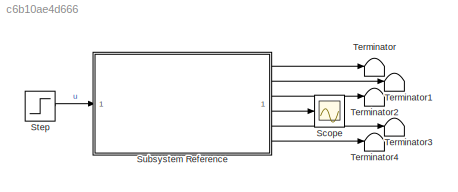
MODEL slx_c6b10ae4d666
KIND model
CONFIG AbsTol = auto
CONFIG EnableMultiTasking = off
CONFIG FixedStep = auto
CONFIG MaxStep = auto
CONFIG MinStep = auto
CONFIG RelTol = 1e-3
CONFIG SampleTimeConstraint = Unconstrained
CONFIG SolverName = VariableStepAuto
CONFIG StartTime = 0.0
CONFIG StopTime = 10.0
BLOCK [Scope] Scope
  Floating = off
  NumInputPorts = 1
  ScopeSpecificationString = Simulink.scopes.TimeScopeBlockCfg('CurrentConfiguration', extmgr.ConfigurationSet(extmgr.Configuration('Core','General UI',true),extmgr.Configuration('Core','Source UI',true),extmgr.Configuration('Sources','WiredSimulink',true),extmgr.Configuration('Visuals','Time Domain',true),extmgr.Configuration('Tools','Plot Navigation',true),extmgr.Configuration('Tools','Measurements',true)),'Version','2023a'...<+1ch>
BLOCK [Step] Step
  SampleTime = 0
BLOCK [SubSystem] Subsystem Reference
  ReferencedSubsystem = InvertedPendulum
BLOCK [Terminator] Terminator
BLOCK [Terminator] Terminator1
BLOCK [Terminator] Terminator2
BLOCK [Terminator] Terminator3
BLOCK [Terminator] Terminator4
LINE Step:1 -> Subsystem Reference:1
LINE Subsystem Reference:1 -> Terminator:1
LINE Subsystem Reference:2 -> Terminator1:1
LINE Subsystem Reference:3 -> Terminator2:1
LINE Subsystem Reference:4 -> Scope:1
LINE Subsystem Reference:5 -> Terminator3:1
LINE Subsystem Reference:6 -> Terminator4:1
